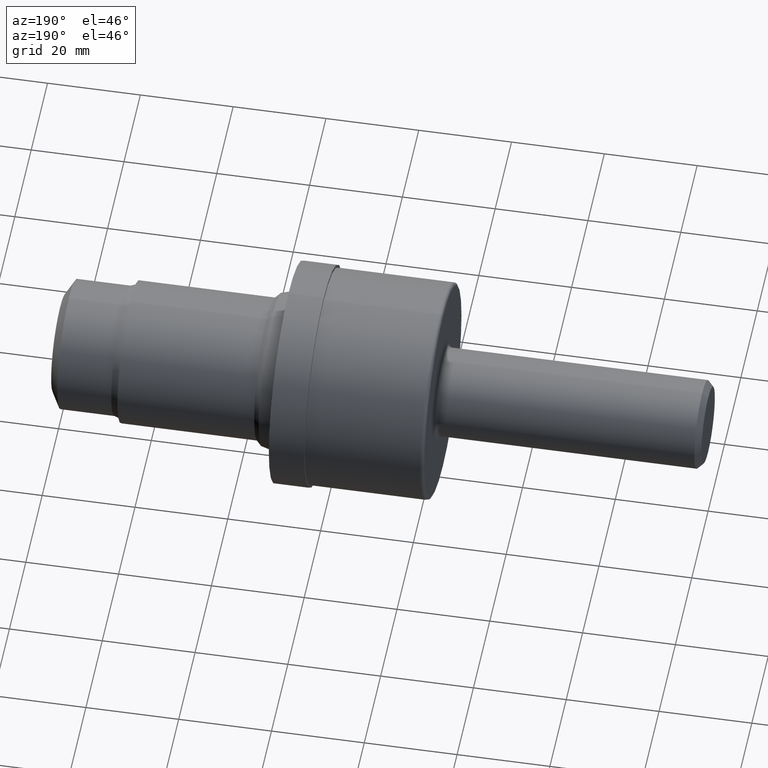
[diagram: clean part render]
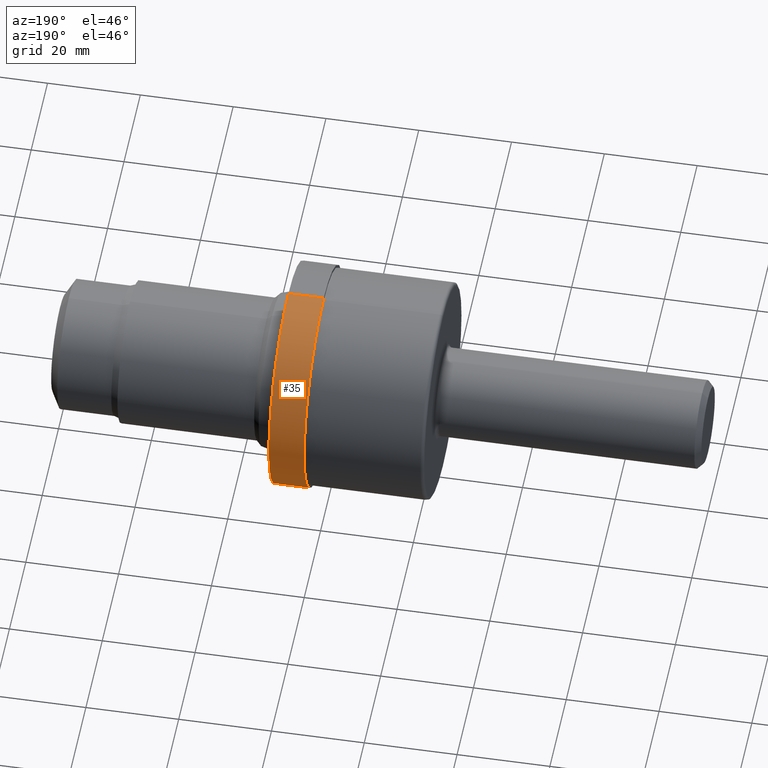
[diagram: same view with one face highlighted and labeled with its STEP entity id]
A machine part, auxiliary view. The second image highlights one B-rep face of the part: STEP entity #35.
In plain terms, the highlighted cylindrical surface (partial cylindrical patch) has radius 23.9395 mm, axis along (-1, -0, -0).
Its self-contained STEP definition (entity closure, byte-faithful):
#2 = CIRCLE ( 'NONE', #286, 0.9425000000000000044 ) ;
#22 = VERTEX_POINT ( 'NONE', #231 ) ;
#35 = ADVANCED_FACE ( 'NONE', ( #467 ), #57, .T. ) ;
#57 = CYLINDRICAL_SURFACE ( 'NONE', #666, 0.9425000000000000044 ) ;
#100 = CIRCLE ( 'NONE', #499, 0.9425000000000000044 ) ;
#124 = CARTESIAN_POINT ( 'NONE',  ( 3.560999999999999943, 1.154229608196380369E-16, -0.9425000000000000044 ) ) ;
#142 = CARTESIAN_POINT ( 'NONE',  ( 3.560999999999999943, 0.0000000000000000000, 0.0000000000000000000 ) ) ;
#176 = DIRECTION ( 'NONE',  ( -1.000000000000000000, -0.0000000000000000000, -0.0000000000000000000 ) ) ;
#204 = LINE ( 'NONE', #518, #874 ) ;
#231 = CARTESIAN_POINT ( 'NONE',  ( 3.261000000000000121, 0.0000000000000000000, 0.9425000000000000044 ) ) ;
#236 = ORIENTED_EDGE ( 'NONE', *, *, #265, .F. ) ;
#265 = EDGE_CURVE ( 'NONE', #22, #706, #100, .T. ) ;
#276 = ORIENTED_EDGE ( 'NONE', *, *, #476, .T. ) ;
#285 = CARTESIAN_POINT ( 'NONE',  ( 3.261000000000000121, 1.154229608196380369E-16, -0.9425000000000000044 ) ) ;
#286 = AXIS2_PLACEMENT_3D ( 'NONE', #142, #514, #525 ) ;
#294 = DIRECTION ( 'NONE',  ( -1.000000000000000000, -0.0000000000000000000, -0.0000000000000000000 ) ) ;
#304 = CARTESIAN_POINT ( 'NONE',  ( 3.261000000000000121, 0.0000000000000000000, 0.0000000000000000000 ) ) ;
#325 = DIRECTION ( 'NONE',  ( -1.000000000000000000, -0.0000000000000000000, -0.0000000000000000000 ) ) ;
#336 = CARTESIAN_POINT ( 'NONE',  ( 0.0000000000000000000, 0.0000000000000000000, 0.0000000000000000000 ) ) ;
#341 = DIRECTION ( 'NONE',  ( -1.000000000000000000, -0.0000000000000000000, -0.0000000000000000000 ) ) ;
#365 = DIRECTION ( 'NONE',  ( 0.0000000000000000000, 0.0000000000000000000, 1.000000000000000000 ) ) ;
#460 = VECTOR ( 'NONE', #341, 39.37007874015748143 ) ;
#467 = FACE_OUTER_BOUND ( 'NONE', #552, .T. ) ;
#476 = EDGE_CURVE ( 'NONE', #734, #706, #204, .T. ) ;
#499 = AXIS2_PLACEMENT_3D ( 'NONE', #304, #294, #594 ) ;
#514 = DIRECTION ( 'NONE',  ( -1.000000000000000000, -0.0000000000000000000, -0.0000000000000000000 ) ) ;
#518 = CARTESIAN_POINT ( 'NONE',  ( 0.0000000000000000000, 1.154229608196380369E-16, -0.9425000000000000044 ) ) ;
#525 = DIRECTION ( 'NONE',  ( 0.0000000000000000000, 0.0000000000000000000, 1.000000000000000000 ) ) ;
#532 = VERTEX_POINT ( 'NONE', #649 ) ;
#552 = EDGE_LOOP ( 'NONE', ( #555, #276, #236, #693 ) ) ;
#555 = ORIENTED_EDGE ( 'NONE', *, *, #803, .T. ) ;
#594 = DIRECTION ( 'NONE',  ( 0.0000000000000000000, 0.0000000000000000000, 1.000000000000000000 ) ) ;
#649 = CARTESIAN_POINT ( 'NONE',  ( 3.560999999999999943, 0.0000000000000000000, 0.9425000000000000044 ) ) ;
#666 = AXIS2_PLACEMENT_3D ( 'NONE', #336, #325, #365 ) ;
#693 = ORIENTED_EDGE ( 'NONE', *, *, #831, .F. ) ;
#706 = VERTEX_POINT ( 'NONE', #285 ) ;
#710 = LINE ( 'NONE', #795, #460 ) ;
#734 = VERTEX_POINT ( 'NONE', #124 ) ;
#795 = CARTESIAN_POINT ( 'NONE',  ( 0.0000000000000000000, 0.0000000000000000000, 0.9425000000000000044 ) ) ;
#803 = EDGE_CURVE ( 'NONE', #532, #734, #2, .T. ) ;
#831 = EDGE_CURVE ( 'NONE', #532, #22, #710, .T. ) ;
#874 = VECTOR ( 'NONE', #176, 39.37007874015748143 ) ;